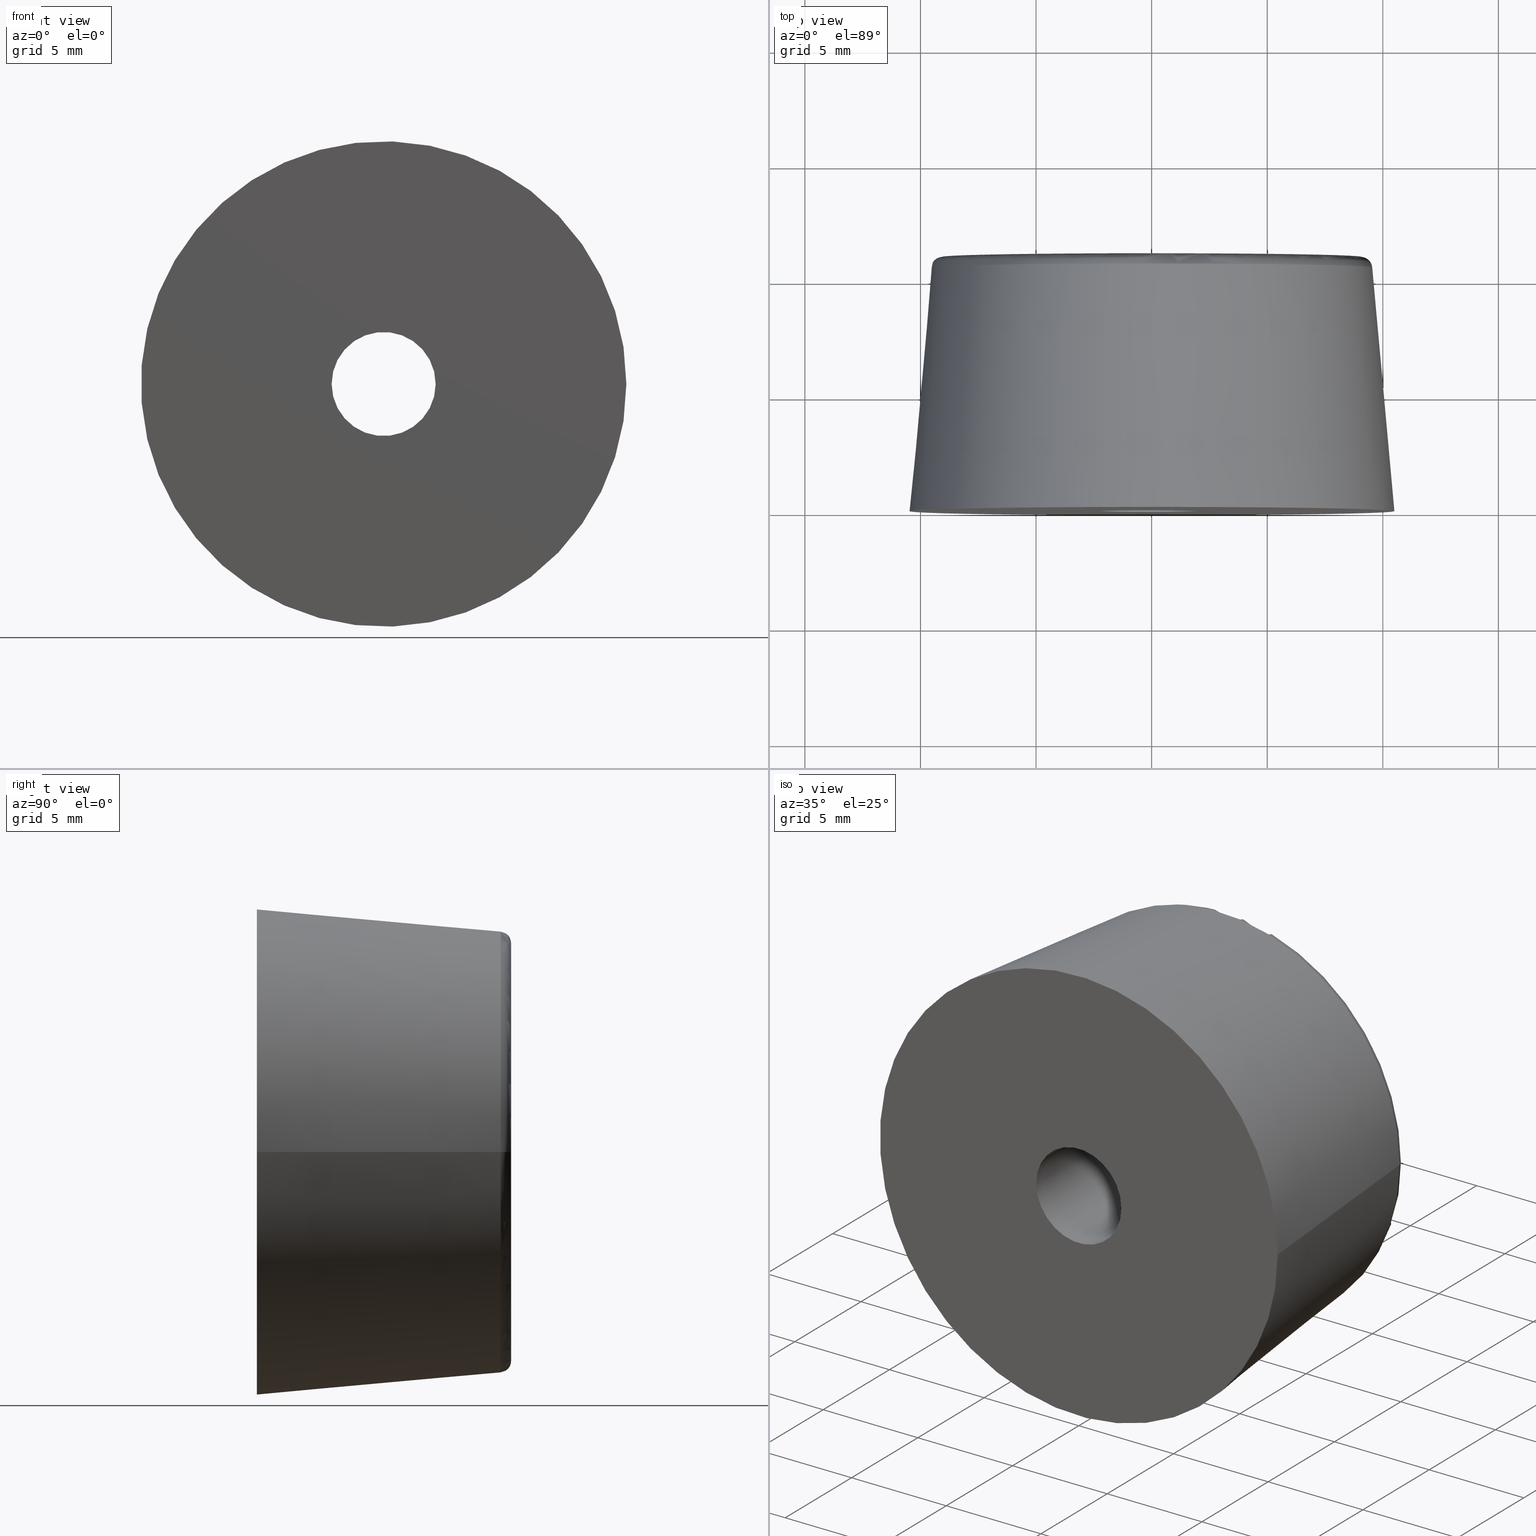
[diagram: canonical four-view strip — front | top / right | iso, engineering-drawing reading convention]
A machine part, canonical four-view strip (front | top / right | iso — engineering-drawing reading convention). The complete STEP part file that produces these views, byte-faithful:
ISO-10303-21;
HEADER;
/* Generated by software containing ST-Developer
 * from STEP Tools, Inc. (www.steptools.com) 
 */

FILE_DESCRIPTION(
/* description */ (''),
/* implementation_level */ '2;1');

FILE_NAME(
/* name */ '\\\\SYNOLOGYNAS\\web\\db2\\PR10-12\\\X2\B3C4BA74\X0\\\DR_P
R10-12.stp',
/* time_stamp */ '2023-01-09T12:00:20+09:00',
/* author */ ('user'),
/* organization */ (''),
/* preprocessor_version */ 'ST-DEVELOPER v15.6',
/* originating_system */ 'Autodesk Inventor 2015',
/* authorisation */ '');

FILE_SCHEMA (('AUTOMOTIVE_DESIGN { 1 0 10303 214 3 1 1 }'));
ENDSEC;

DATA;
#10=MECHANICAL_DESIGN_GEOMETRIC_PRESENTATION_REPRESENTATION('',(#13),#163);
#11=SHAPE_REPRESENTATION_RELATIONSHIP('SRR','None',#172,#12);
#12=ADVANCED_BREP_SHAPE_REPRESENTATION($,(#14),#162);
#13=STYLED_ITEM('',(#181),#14);
#14=MANIFOLD_SOLID_BREP('\X2\C194B9ACB4DC\X0\1',#92);
#15=CYLINDRICAL_SURFACE('',#104,5.);
#16=CYLINDRICAL_SURFACE('',#105,2.25);
#17=CONICAL_SURFACE('',#99,10.5,5.19442890773481);
#18=PLANE('',#97);
#19=PLANE('',#101);
#20=PLANE('',#107);
#21=FACE_BOUND('',#36,.T.);
#22=FACE_BOUND('',#38,.T.);
#23=FACE_BOUND('',#40,.T.);
#24=FACE_BOUND('',#42,.T.);
#25=FACE_BOUND('',#44,.T.);
#26=FACE_BOUND('',#46,.T.);
#27=FACE_BOUND('',#48,.T.);
#28=FACE_OUTER_BOUND('',#35,.T.);
#29=FACE_OUTER_BOUND('',#37,.T.);
#30=FACE_OUTER_BOUND('',#39,.T.);
#31=FACE_OUTER_BOUND('',#41,.T.);
#32=FACE_OUTER_BOUND('',#43,.T.);
#33=FACE_OUTER_BOUND('',#45,.T.);
#34=FACE_OUTER_BOUND('',#47,.T.);
#35=EDGE_LOOP('',(#70));
#36=EDGE_LOOP('',(#71));
#37=EDGE_LOOP('',(#72));
#38=EDGE_LOOP('',(#73));
#39=EDGE_LOOP('',(#74));
#40=EDGE_LOOP('',(#75));
#41=EDGE_LOOP('',(#76));
#42=EDGE_LOOP('',(#77));
#43=EDGE_LOOP('',(#78));
#44=EDGE_LOOP('',(#79));
#45=EDGE_LOOP('',(#80));
#46=EDGE_LOOP('',(#81));
#47=EDGE_LOOP('',(#82));
#48=EDGE_LOOP('',(#83));
#49=CIRCLE('',#95,9.04339268103694);
#50=CIRCLE('',#96,9.5413392842708);
#51=CIRCLE('',#98,5.);
#52=CIRCLE('',#100,10.5);
#53=CIRCLE('',#102,5.);
#54=CIRCLE('',#103,2.25);
#55=CIRCLE('',#106,2.25);
#56=VERTEX_POINT('',#140);
#57=VERTEX_POINT('',#142);
#58=VERTEX_POINT('',#145);
#59=VERTEX_POINT('',#148);
#60=VERTEX_POINT('',#151);
#61=VERTEX_POINT('',#153);
#62=VERTEX_POINT('',#157);
#63=EDGE_CURVE('',#56,#56,#49,.T.);
#64=EDGE_CURVE('',#57,#57,#50,.T.);
#65=EDGE_CURVE('',#58,#58,#51,.T.);
#66=EDGE_CURVE('',#59,#59,#52,.T.);
#67=EDGE_CURVE('',#60,#60,#53,.T.);
#68=EDGE_CURVE('',#61,#61,#54,.T.);
#69=EDGE_CURVE('',#62,#62,#55,.T.);
#70=ORIENTED_EDGE('',*,*,#63,.T.);
#71=ORIENTED_EDGE('',*,*,#64,.T.);
#72=ORIENTED_EDGE('',*,*,#63,.F.);
#73=ORIENTED_EDGE('',*,*,#65,.T.);
#74=ORIENTED_EDGE('',*,*,#66,.T.);
#75=ORIENTED_EDGE('',*,*,#64,.F.);
#76=ORIENTED_EDGE('',*,*,#67,.T.);
#77=ORIENTED_EDGE('',*,*,#68,.F.);
#78=ORIENTED_EDGE('',*,*,#65,.F.);
#79=ORIENTED_EDGE('',*,*,#67,.F.);
#80=ORIENTED_EDGE('',*,*,#69,.F.);
#81=ORIENTED_EDGE('',*,*,#68,.T.);
#82=ORIENTED_EDGE('',*,*,#66,.F.);
#83=ORIENTED_EDGE('',*,*,#69,.T.);
#84=TOROIDAL_SURFACE('',#94,9.04339268103694,0.5);
#85=ADVANCED_FACE('',(#28,#21),#84,.T.);
#86=ADVANCED_FACE('',(#29,#22),#18,.F.);
#87=ADVANCED_FACE('',(#30,#23),#17,.T.);
#88=ADVANCED_FACE('',(#31,#24),#19,.T.);
#89=ADVANCED_FACE('',(#32,#25),#15,.F.);
#90=ADVANCED_FACE('',(#33,#26),#16,.F.);
#91=ADVANCED_FACE('',(#34,#27),#20,.F.);
#92=CLOSED_SHELL('',(#85,#86,#87,#88,#89,#90,#91));
#93=AXIS2_PLACEMENT_3D('placement',#138,#108,#109);
#94=AXIS2_PLACEMENT_3D('',#139,#110,#111);
#95=AXIS2_PLACEMENT_3D('',#141,#112,#113);
#96=AXIS2_PLACEMENT_3D('',#143,#114,#115);
#97=AXIS2_PLACEMENT_3D('',#144,#116,#117);
#98=AXIS2_PLACEMENT_3D('',#146,#118,#119);
#99=AXIS2_PLACEMENT_3D('',#147,#120,#121);
#100=AXIS2_PLACEMENT_3D('',#149,#122,#123);
#101=AXIS2_PLACEMENT_3D('',#150,#124,#125);
#102=AXIS2_PLACEMENT_3D('',#152,#126,#127);
#103=AXIS2_PLACEMENT_3D('',#154,#128,#129);
#104=AXIS2_PLACEMENT_3D('',#155,#130,#131);
#105=AXIS2_PLACEMENT_3D('',#156,#132,#133);
#106=AXIS2_PLACEMENT_3D('',#158,#134,#135);
#107=AXIS2_PLACEMENT_3D('',#159,#136,#137);
#108=DIRECTION('axis',(0.,0.,1.));
#109=DIRECTION('refdir',(1.,0.,0.));
#110=DIRECTION('center_axis',(0.,-1.,0.));
#111=DIRECTION('ref_axis',(0.,0.,-1.));
#112=DIRECTION('center_axis',(0.,-1.,0.));
#113=DIRECTION('ref_axis',(-1.,0.,1.22464679914735E-16));
#114=DIRECTION('center_axis',(0.,1.,0.));
#115=DIRECTION('ref_axis',(-1.,0.,1.22464679914735E-16));
#116=DIRECTION('center_axis',(0.,-1.,0.));
#117=DIRECTION('ref_axis',(0.,0.,-1.));
#118=DIRECTION('center_axis',(0.,-1.,0.));
#119=DIRECTION('ref_axis',(-1.,0.,0.));
#120=DIRECTION('center_axis',(0.,-1.,0.));
#121=DIRECTION('ref_axis',(1.,0.,0.));
#122=DIRECTION('center_axis',(0.,1.,0.));
#123=DIRECTION('ref_axis',(1.,0.,0.));
#124=DIRECTION('center_axis',(0.,1.,0.));
#125=DIRECTION('ref_axis',(-1.,0.,0.));
#126=DIRECTION('center_axis',(0.,1.,0.));
#127=DIRECTION('ref_axis',(-1.,0.,0.));
#128=DIRECTION('center_axis',(0.,1.,0.));
#129=DIRECTION('ref_axis',(-1.,0.,0.));
#130=DIRECTION('center_axis',(0.,1.,0.));
#131=DIRECTION('ref_axis',(-1.,0.,0.));
#132=DIRECTION('center_axis',(0.,1.,0.));
#133=DIRECTION('ref_axis',(-1.,0.,0.));
#134=DIRECTION('center_axis',(0.,1.,0.));
#135=DIRECTION('ref_axis',(-1.,0.,0.));
#136=DIRECTION('center_axis',(0.,1.,0.));
#137=DIRECTION('ref_axis',(0.,0.,1.));
#138=CARTESIAN_POINT('',(0.,0.,0.));
#139=CARTESIAN_POINT('Origin',(0.,10.5,0.));
#140=CARTESIAN_POINT('',(9.04339268103694,11.,0.));
#141=CARTESIAN_POINT('Origin',(0.,11.,0.));
#142=CARTESIAN_POINT('',(9.5413392842708,10.5452678730213,-2.33695412281223E-15));
#143=CARTESIAN_POINT('Origin',(0.,10.5452678730213,0.));
#144=CARTESIAN_POINT('Origin',(0.,11.,0.));
#145=CARTESIAN_POINT('',(-5.,11.,0.));
#146=CARTESIAN_POINT('Origin',(0.,11.,0.));
#147=CARTESIAN_POINT('Origin',(0.,0.,0.));
#148=CARTESIAN_POINT('',(10.5,0.,0.));
#149=CARTESIAN_POINT('Origin',(0.,0.,0.));
#150=CARTESIAN_POINT('Origin',(0.,6.5,0.));
#151=CARTESIAN_POINT('',(-5.,6.5,0.));
#152=CARTESIAN_POINT('Origin',(0.,6.5,0.));
#153=CARTESIAN_POINT('',(2.25,6.5,-2.75545529808154E-16));
#154=CARTESIAN_POINT('Origin',(0.,6.5,0.));
#155=CARTESIAN_POINT('Origin',(0.,8.75,0.));
#156=CARTESIAN_POINT('Origin',(0.,-22.9201752442262,0.));
#157=CARTESIAN_POINT('',(2.25,0.,-2.75545529808154E-16));
#158=CARTESIAN_POINT('Origin',(0.,0.,0.));
#159=CARTESIAN_POINT('Origin',(0.,0.,0.));
#160=UNCERTAINTY_MEASURE_WITH_UNIT(LENGTH_MEASURE(0.01),#164,
'DISTANCE_ACCURACY_VALUE',
'Maximum model space distance between geometric entities at asserted c
onnectivities');
#161=UNCERTAINTY_MEASURE_WITH_UNIT(LENGTH_MEASURE(1.E-6),#164,
'DISTANCE_ACCURACY_VALUE',
'Maximum model space distance between geometric entities at asserted c
onnectivities');
#162=(
GEOMETRIC_REPRESENTATION_CONTEXT(3)
GLOBAL_UNCERTAINTY_ASSIGNED_CONTEXT((#160))
GLOBAL_UNIT_ASSIGNED_CONTEXT((#164,#167,#165))
REPRESENTATION_CONTEXT('','3D')
);
#163=(
GEOMETRIC_REPRESENTATION_CONTEXT(3)
GLOBAL_UNCERTAINTY_ASSIGNED_CONTEXT((#161))
GLOBAL_UNIT_ASSIGNED_CONTEXT((#164,#167,#165))
REPRESENTATION_CONTEXT('','3D')
);
#164=(
LENGTH_UNIT()
NAMED_UNIT(*)
SI_UNIT(.MILLI.,.METRE.)
);
#165=(
NAMED_UNIT(*)
SI_UNIT($,.STERADIAN.)
SOLID_ANGLE_UNIT()
);
#166=DIMENSIONAL_EXPONENTS(0.,0.,0.,0.,0.,0.,0.);
#167=(
CONVERSION_BASED_UNIT('degree',#169)
NAMED_UNIT(#166)
PLANE_ANGLE_UNIT()
);
#168=(
NAMED_UNIT(*)
PLANE_ANGLE_UNIT()
SI_UNIT($,.RADIAN.)
);
#169=PLANE_ANGLE_MEASURE_WITH_UNIT(PLANE_ANGLE_MEASURE(0.01745329252),#168);
#170=SHAPE_DEFINITION_REPRESENTATION(#171,#172);
#171=PRODUCT_DEFINITION_SHAPE('',$,#174);
#172=SHAPE_REPRESENTATION('',(#93),#162);
#173=PRODUCT_DEFINITION_CONTEXT('part definition',#178,'design');
#174=PRODUCT_DEFINITION('DR_PR10-12','DR_PR10-12',#175,#173);
#175=PRODUCT_DEFINITION_FORMATION('',$,#180);
#176=PRODUCT_RELATED_PRODUCT_CATEGORY('DR_PR10-12','DR_PR10-12',(#180));
#177=APPLICATION_PROTOCOL_DEFINITION('international standard',
'automotive_design',2009,#178);
#178=APPLICATION_CONTEXT(
'Core Data for Automotive Mechanical Design Process');
#179=PRODUCT_CONTEXT('part definition',#178,'mechanical');
#180=PRODUCT('DR_PR10-12','DR_PR10-12',$,(#179));
#181=PRESENTATION_STYLE_ASSIGNMENT((#182));
#182=SURFACE_STYLE_USAGE(.BOTH.,#183);
#183=SURFACE_SIDE_STYLE($,(#184));
#184=SURFACE_STYLE_FILL_AREA(#185);
#185=FILL_AREA_STYLE($,(#186));
#186=FILL_AREA_STYLE_COLOUR($,#187);
#187=COLOUR_RGB('',1.,1.,1.);
ENDSEC;
END-ISO-10303-21;
